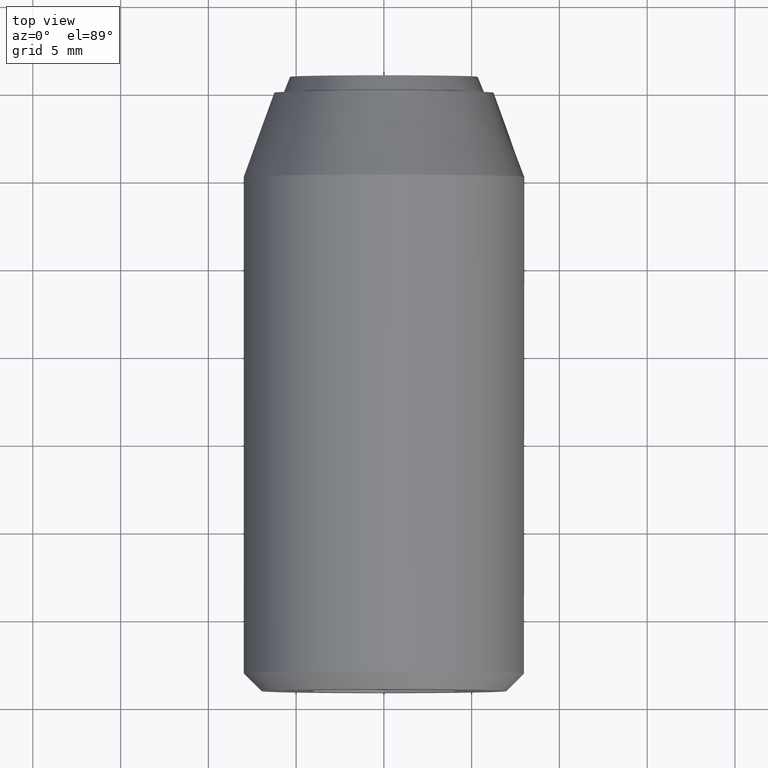
[diagram: clean part render]
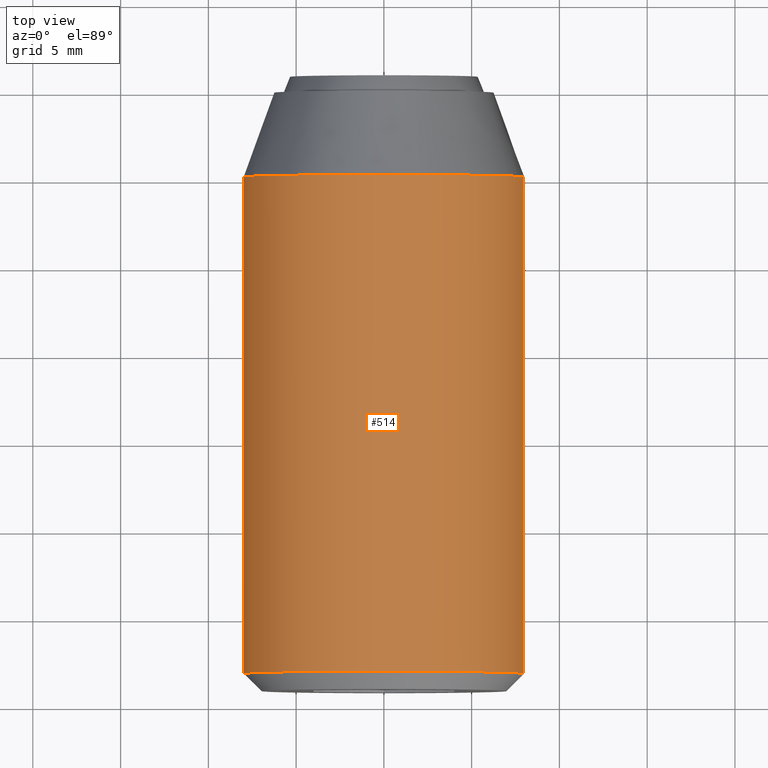
[diagram: same view with one face highlighted and labeled with its STEP entity id]
A machine part, top view. The second image highlights one B-rep face of the part: STEP entity #514.
In plain terms, the highlighted face is a freeform B-spline surface patch.
Its self-contained STEP definition (entity closure, byte-faithful):
#309=CARTESIAN_POINT('',(-7.985078436995666,-4.808085999013084,0.488387499100347));
#310=VERTEX_POINT('',#309);
#316=CARTESIAN_POINT('',(0.0,-4.808085999999999,7.999999999999998));
#317=VERTEX_POINT('',#316);
#318=CARTESIAN_POINT('',(0.0,-4.808085999999999,7.999999999999998));
#319=CARTESIAN_POINT('',(-7.525649306825357,-4.808086000000000,7.999999999999999));
#320=CARTESIAN_POINT('',(-7.985078436995666,-4.808085999013084,0.488387499100347));
#328=(BOUNDED_CURVE()B_SPLINE_CURVE(2,(#318,#319,#320),.UNSPECIFIED.,.F.,.U.)B_SPLINE_CURVE_WITH_KNOTS((3,3),(0.500000000000000,0.739332979899622),.UNSPECIFIED.)CURVE()GEOMETRIC_REPRESENTATION_ITEM()RATIONAL_B_SPLINE_CURVE((1.0,0.719603972595938,0.976072079516917))REPRESENTATION_ITEM(''));
#329=EDGE_CURVE('',#317,#310,#328,.T.);
#331=CARTESIAN_POINT('',(7.947754839124859,-4.808085999999999,0.912794071540353));
#332=VERTEX_POINT('',#331);
#333=CARTESIAN_POINT('',(7.947754839124859,-4.808085999999999,0.912794071540353));
#334=CARTESIAN_POINT('',(7.133794206699027,-4.808086000000000,7.999999999999999));
#335=CARTESIAN_POINT('',(0.0,-4.808085999999999,7.999999999999998));
#343=(BOUNDED_CURVE()B_SPLINE_CURVE(2,(#333,#334,#335),.UNSPECIFIED.,.F.,.U.)B_SPLINE_CURVE_WITH_KNOTS((3,3),(0.269767516400934,0.500000000000000),.UNSPECIFIED.)CURVE()GEOMETRIC_REPRESENTATION_ITEM()RATIONAL_B_SPLINE_CURVE((0.957344208849934,0.730265867213016,1.0))REPRESENTATION_ITEM(''));
#344=EDGE_CURVE('',#332,#317,#343,.T.);
#435=CARTESIAN_POINT('',(7.947753547485708,-4.100788149999999,0.912805317922882));
#436=CARTESIAN_POINT('',(7.182521220688651,-4.100788149999997,7.575647679305657));
#437=CARTESIAN_POINT('',(0.488388316278856,-4.100788149999998,7.985078387374933));
#438=CARTESIAN_POINT('',(-7.496690071096078,-4.100788149999999,8.473466703653788));
#439=CARTESIAN_POINT('',(-7.985078387374934,-4.100788149999998,0.488388316278855));
#440=CARTESIAN_POINT('',(7.947753547485708,-33.824980296250004,0.912805317922882));
#441=CARTESIAN_POINT('',(7.182521220688651,-33.824980296250004,7.575647679305657));
#442=CARTESIAN_POINT('',(0.488388316278856,-33.824980296249997,7.985078387374933));
#443=CARTESIAN_POINT('',(-7.496690071096078,-33.824980296249997,8.473466703653788));
#444=CARTESIAN_POINT('',(-7.985078387374934,-33.824980296249997,0.488388316278855));
#452=(BOUNDED_SURFACE()B_SPLINE_SURFACE(2,1,((#435,#440),(#436,#441),(#437,#442),(#438,#443),(#439,#444)),.UNSPECIFIED.,.F.,.F.,.U.)B_SPLINE_SURFACE_WITH_KNOTS((3,2,3),(2,2),(0.0,11.664253916426350,24.919087912365391),(0.0,29.724192146250019),.UNSPECIFIED.)GEOMETRIC_REPRESENTATION_ITEM()RATIONAL_B_SPLINE_SURFACE(((0.938140952186599,0.938140952186599),(0.742253967444162,0.742253967444162),(1.0,1.0),(0.707106781186548,0.707106781186548),(1.0,1.0)))REPRESENTATION_ITEM('')SURFACE());
#453=CARTESIAN_POINT('',(7.947753547483732,-33.099999999999987,0.912805317940099));
#454=VERTEX_POINT('',#453);
#455=CARTESIAN_POINT('',(0.0,-33.099999999999987,7.999999999999998));
#456=VERTEX_POINT('',#455);
#457=CARTESIAN_POINT('',(7.947753547483732,-33.099999999999994,0.912805317940099));
#458=CARTESIAN_POINT('',(7.133784045720198,-33.099999999999994,7.999999999999999));
#459=CARTESIAN_POINT('',(0.0,-33.099999999999987,7.999999999999998));
#467=(BOUNDED_CURVE()B_SPLINE_CURVE(2,(#457,#458,#459),.UNSPECIFIED.,.F.,.U.)B_SPLINE_CURVE_WITH_KNOTS((3,3),(0.269767755877342,0.500000000000000),.UNSPECIFIED.)CURVE()GEOMETRIC_REPRESENTATION_ITEM()RATIONAL_B_SPLINE_CURVE((0.957343736459217,0.730266147777081,1.0))REPRESENTATION_ITEM(''));
#468=EDGE_CURVE('',#454,#456,#467,.T.);
#469=ORIENTED_EDGE('',*,*,#468,.F.);
#470=CARTESIAN_POINT('',(7.947754839124859,-4.808085999999999,0.912794071540353));
#471=CARTESIAN_POINT('',(7.947753547483732,-33.099999999999987,0.912805317940099));
#472=QUASI_UNIFORM_CURVE('',1,(#470,#471),.UNSPECIFIED.,.F.,.U.);
#473=EDGE_CURVE('',#332,#454,#472,.T.);
#474=ORIENTED_EDGE('',*,*,#473,.F.);
#475=ORIENTED_EDGE('',*,*,#344,.T.);
#476=ORIENTED_EDGE('',*,*,#329,.T.);
#477=CARTESIAN_POINT('',(-7.985078429134152,-33.099999999999987,0.488387633520728));
#478=VERTEX_POINT('',#477);
#479=CARTESIAN_POINT('',(-7.985078436995666,-4.808085999013084,0.488387499100347));
#480=CARTESIAN_POINT('',(-7.985078429134152,-33.099999999999987,0.488387633520728));
#481=QUASI_UNIFORM_CURVE('',1,(#479,#480),.UNSPECIFIED.,.F.,.U.);
#482=EDGE_CURVE('',#310,#478,#481,.T.);
#483=ORIENTED_EDGE('',*,*,#482,.T.);
#484=CARTESIAN_POINT('',(-7.975338669866337,-33.099999999996683,0.627672765848300));
#485=VERTEX_POINT('',#484);
#486=CARTESIAN_POINT('',(-7.975338669866338,-33.099999999996683,0.627672765848300));
#487=CARTESIAN_POINT('',(-7.980816340779448,-33.100000000000009,0.558072357712341));
#488=CARTESIAN_POINT('',(-7.985078429134153,-33.099999999999994,0.488387633520728));
#496=(BOUNDED_CURVE()B_SPLINE_CURVE(2,(#486,#487,#488),.UNSPECIFIED.,.F.,.U.)B_SPLINE_CURVE_WITH_KNOTS((3,3),(0.736331300631680,0.739332991748937),.UNSPECIFIED.)CURVE()GEOMETRIC_REPRESENTATION_ITEM()RATIONAL_B_SPLINE_CURVE((0.969723356169547,0.972855506353582,0.976072104912261))REPRESENTATION_ITEM(''));
#497=EDGE_CURVE('',#485,#478,#496,.T.);
#498=ORIENTED_EDGE('',*,*,#497,.F.);
#499=CARTESIAN_POINT('',(0.0,-33.099999999999987,7.999999999999998));
#500=CARTESIAN_POINT('',(-7.395123933218637,-33.100000000000001,7.999999999999999));
#501=CARTESIAN_POINT('',(-7.975338669866337,-33.099999999996690,0.627672765848300));
#509=(BOUNDED_CURVE()B_SPLINE_CURVE(2,(#499,#500,#501),.UNSPECIFIED.,.F.,.U.)B_SPLINE_CURVE_WITH_KNOTS((3,3),(0.500000000000000,0.736331300631680),.UNSPECIFIED.)CURVE()GEOMETRIC_REPRESENTATION_ITEM()RATIONAL_B_SPLINE_CURVE((1.0,0.723120658606470,0.969723356169548))REPRESENTATION_ITEM(''));
#510=EDGE_CURVE('',#456,#485,#509,.T.);
#511=ORIENTED_EDGE('',*,*,#510,.F.);
#512=EDGE_LOOP('',(#469,#474,#475,#476,#483,#498,#511));
#513=FACE_OUTER_BOUND('',#512,.T.);
#514=ADVANCED_FACE('',(#513),#452,.T.);